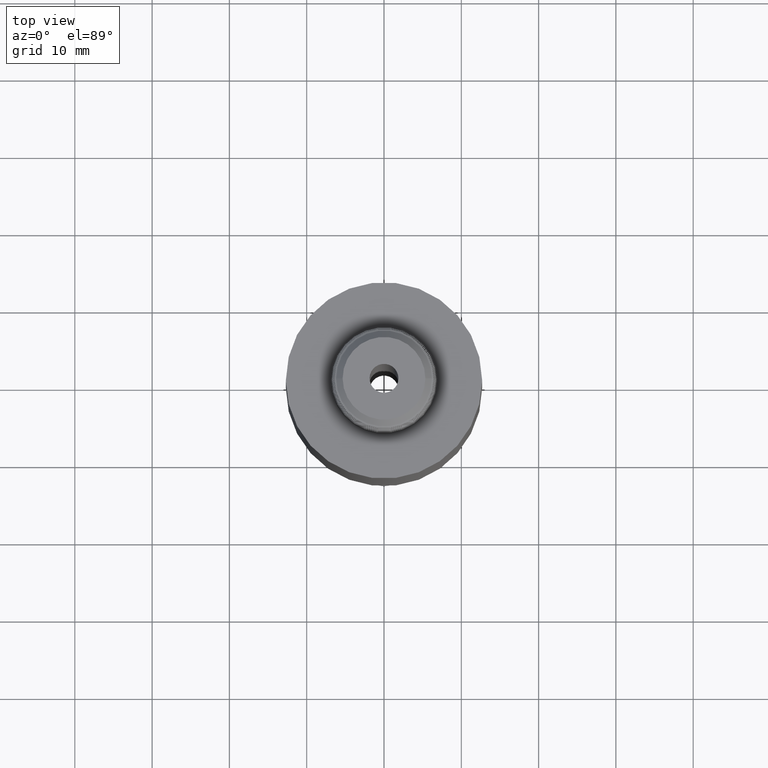
[diagram: clean part render]
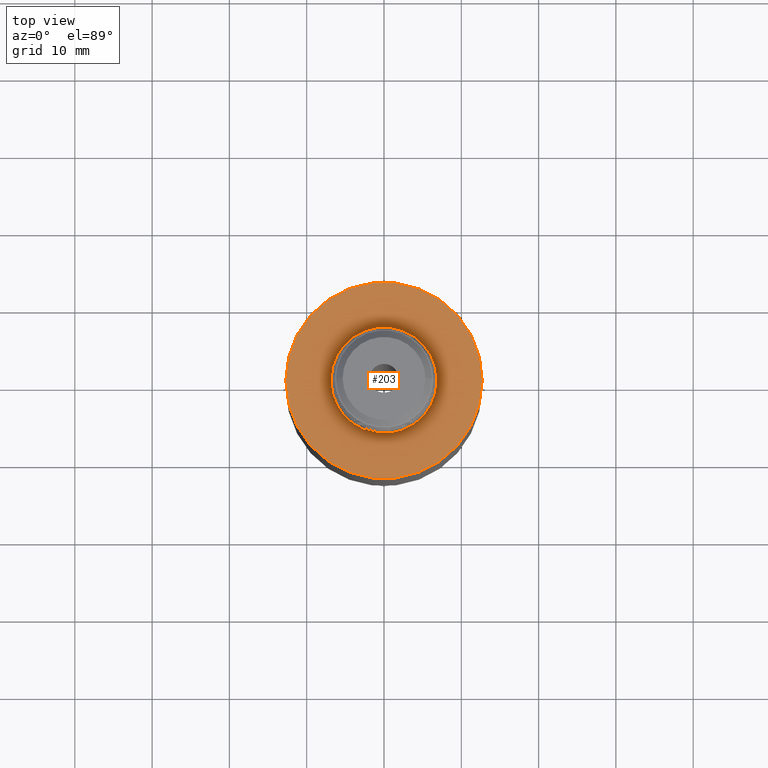
[diagram: same view with one face highlighted and labeled with its STEP entity id]
A machine part, top view. The second image highlights one B-rep face of the part: STEP entity #203.
In plain terms, the highlighted planar face has unit normal (0, 0, 1).
Its self-contained STEP definition (entity closure, byte-faithful):
#92 = FACE_OUTER_BOUND ( 'NONE', #186, .T. ) ;
#95 = FACE_BOUND ( 'NONE', #128, .T. ) ;
#128 = EDGE_LOOP ( 'NONE', ( #395, #435 ) ) ;
#186 = EDGE_LOOP ( 'NONE', ( #417, #393 ) ) ;
#203 = ADVANCED_FACE ( 'NONE', ( #95, #92 ), #3679, .T. ) ;
#393 = ORIENTED_EDGE ( 'NONE', *, *, #4724, .F. ) ;
#395 = ORIENTED_EDGE ( 'NONE', *, *, #1054, .T. ) ;
#417 = ORIENTED_EDGE ( 'NONE', *, *, #1065, .F. ) ;
#435 = ORIENTED_EDGE ( 'NONE', *, *, #4688, .T. ) ;
#670 = DIRECTION ( 'NONE',  ( -0.0000000000000000000, -0.0000000000000000000, -1.000000000000000000 ) ) ;
#702 = DIRECTION ( 'NONE',  ( -1.000000000000000000, 0.0000000000000000000, 0.0000000000000000000 ) ) ;
#740 = CARTESIAN_POINT ( 'NONE',  ( 0.0000000000000000000, 0.0000000000000000000, 2.000000000000000000 ) ) ;
#904 = CARTESIAN_POINT ( 'NONE',  ( -0.2699999999999999600, 0.0000000000000000000, 2.000000000000000000 ) ) ;
#1039 = CARTESIAN_POINT ( 'NONE',  ( 0.4999999999999997200, 6.123233995736763600E-017, 2.000000000000000000 ) ) ;
#1040 = CARTESIAN_POINT ( 'NONE',  ( -0.4999999999999997200, 0.0000000000000000000, 2.000000000000000000 ) ) ;
#1043 = CARTESIAN_POINT ( 'NONE',  ( 0.2699999999999999600, 3.306546357697853700E-017, 2.000000000000000000 ) ) ;
#1054 = EDGE_CURVE ( 'NONE', #3704, #3705, #4300, .T. ) ;
#1065 = EDGE_CURVE ( 'NONE', #3699, #3698, #4321, .T. ) ;
#1413 = AXIS2_PLACEMENT_3D ( 'NONE', #3443, #3650, #3678 ) ;
#1563 = AXIS2_PLACEMENT_3D ( 'NONE', #2658, #2546, #2657 ) ;
#1568 = AXIS2_PLACEMENT_3D ( 'NONE', #2646, #2836, #1862 ) ;
#1800 = AXIS2_PLACEMENT_3D ( 'NONE', #740, #670, #702 ) ;
#1821 = AXIS2_PLACEMENT_3D ( 'NONE', #5284, #5285, #5543 ) ;
#1862 = DIRECTION ( 'NONE',  ( -1.000000000000000000, 0.0000000000000000000, 0.0000000000000000000 ) ) ;
#2546 = DIRECTION ( 'NONE',  ( -0.0000000000000000000, -0.0000000000000000000, -1.000000000000000000 ) ) ;
#2646 = CARTESIAN_POINT ( 'NONE',  ( 0.0000000000000000000, 0.0000000000000000000, 2.000000000000000000 ) ) ;
#2657 = DIRECTION ( 'NONE',  ( -1.000000000000000000, 0.0000000000000000000, 0.0000000000000000000 ) ) ;
#2658 = CARTESIAN_POINT ( 'NONE',  ( 0.0000000000000000000, 0.0000000000000000000, 2.000000000000000000 ) ) ;
#2836 = DIRECTION ( 'NONE',  ( -0.0000000000000000000, -0.0000000000000000000, -1.000000000000000000 ) ) ;
#3443 = CARTESIAN_POINT ( 'NONE',  ( 0.0000000000000000000, 0.4999999999999997200, 2.000000000000000000 ) ) ;
#3650 = DIRECTION ( 'NONE',  ( 0.0000000000000000000, 0.0000000000000000000, 1.000000000000000000 ) ) ;
#3678 = DIRECTION ( 'NONE',  ( 1.000000000000000000, 0.0000000000000000000, -0.0000000000000000000 ) ) ;
#3679 = PLANE ( 'NONE',  #1413 ) ;
#3698 = VERTEX_POINT ( 'NONE', #1039 ) ;
#3699 = VERTEX_POINT ( 'NONE', #1040 ) ;
#3704 = VERTEX_POINT ( 'NONE', #904 ) ;
#3705 = VERTEX_POINT ( 'NONE', #1043 ) ;
#4300 = CIRCLE ( 'NONE', #1563, 0.2699999999999999600 ) ;
#4321 = CIRCLE ( 'NONE', #1568, 0.4999999999999997200 ) ;
#4688 = EDGE_CURVE ( 'NONE', #3705, #3704, #5132, .T. ) ;
#4724 = EDGE_CURVE ( 'NONE', #3698, #3699, #5180, .T. ) ;
#5132 = CIRCLE ( 'NONE', #1800, 0.2699999999999999600 ) ;
#5180 = CIRCLE ( 'NONE', #1821, 0.4999999999999997200 ) ;
#5284 = CARTESIAN_POINT ( 'NONE',  ( 0.0000000000000000000, 0.0000000000000000000, 2.000000000000000000 ) ) ;
#5285 = DIRECTION ( 'NONE',  ( -0.0000000000000000000, -0.0000000000000000000, -1.000000000000000000 ) ) ;
#5543 = DIRECTION ( 'NONE',  ( -1.000000000000000000, 0.0000000000000000000, 0.0000000000000000000 ) ) ;